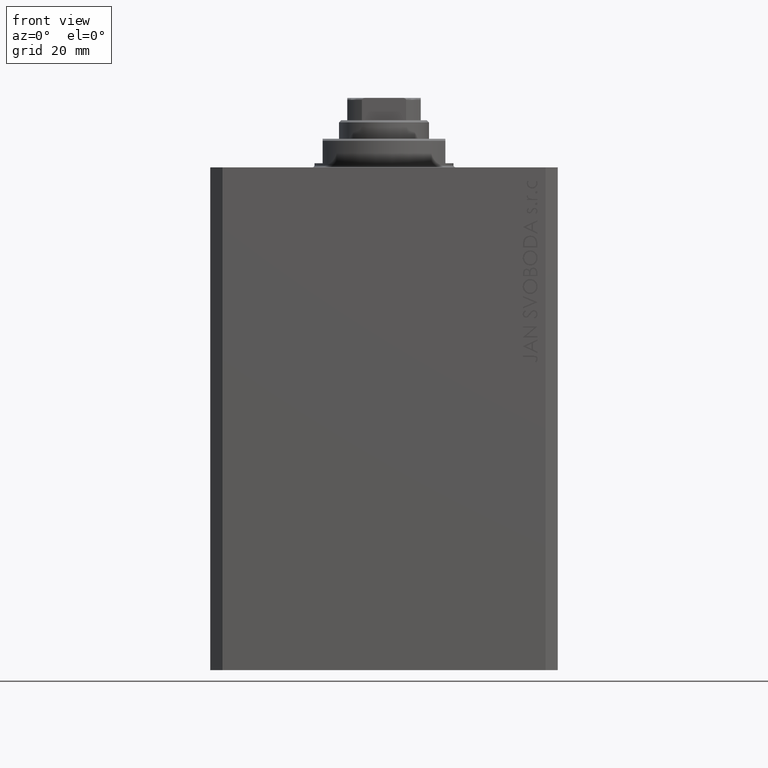
[diagram: clean part render]
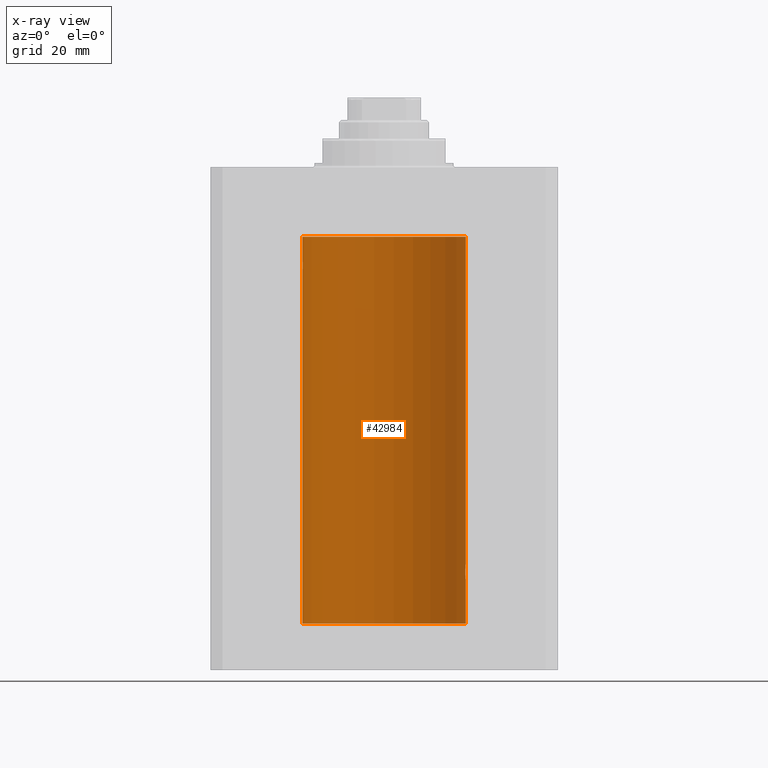
[diagram: x-ray — body ghosted, one internal face saturated and labeled with its STEP entity id]
A machine part, front view, then the same camera in x-ray: the body is ghosted and one INTERNAL B-rep face — a face not visible from any outside direction — is saturated and labeled: STEP entity #42984.
In plain terms, the highlighted cylindrical surface (partial cylindrical patch) has radius 20 mm, axis along (0, 0, 1).
Its self-contained STEP definition (entity closure, byte-faithful):
#664 = DIRECTION ( 'NONE',  ( -0.000000000000000000, -0.000000000000000000, 1.000000000000000000 ) ) ;
#879 = VERTEX_POINT ( 'NONE', #36351 ) ;
#1225 = AXIS2_PLACEMENT_3D ( 'NONE', #39849, #664, #15235 ) ;
#1323 = CARTESIAN_POINT ( 'NONE',  ( 19.90611763847108762, 1.935753518394741635, -98.48042243434849752 ) ) ;
#1352 = ORIENTED_EDGE ( 'NONE', *, *, #42874, .T. ) ;
#1548 = CARTESIAN_POINT ( 'NONE',  ( 19.91911433329477177, 1.797615436563606561, -98.11357106075776358 ) ) ;
#2272 = CARTESIAN_POINT ( 'NONE',  ( 20.00000000000000000, 1.967327733996653312E-15, -101.0000000000000000 ) ) ;
#2656 = CARTESIAN_POINT ( 'NONE',  ( -19.93679350243183990, 1.590453176650918676, -25.21960275349743696 ) ) ;
#2906 = CARTESIAN_POINT ( 'NONE',  ( -19.92373272380676497, 1.747830109444745927, -22.99354240926169624 ) ) ;
#3147 = CARTESIAN_POINT ( 'NONE',  ( -19.95654117037011588, 1.321069663197671273, -25.50738641543989615 ) ) ;
#3331 = CARTESIAN_POINT ( 'NONE',  ( 0.000000000000000000, 0.000000000000000000, -17.00000000000000000 ) ) ;
#3887 = ORIENTED_EDGE ( 'NONE', *, *, #42773, .T. ) ;
#4004 = ORIENTED_EDGE ( 'NONE', *, *, #6267, .T. ) ;
#4161 = DIRECTION ( 'NONE',  ( -0.000000000000000000, -0.000000000000000000, 1.000000000000000000 ) ) ;
#4530 = ORIENTED_EDGE ( 'NONE', *, *, #40909, .F. ) ;
#5029 = VERTEX_POINT ( 'NONE', #9109 ) ;
#5590 = CARTESIAN_POINT ( 'NONE',  ( 20.00000000000000000, -1.553109350199128042E-23, -97.00000000000000000 ) ) ;
#5875 = EDGE_CURVE ( 'NONE', #879, #16762, #28465, .T. ) ;
#5992 = CARTESIAN_POINT ( 'NONE',  ( -19.98998539619404013, 0.6443418861413118259, -25.89789687358865322 ) ) ;
#6108 = CIRCLE ( 'NONE', #35853, 20.00000000000000000 ) ;
#6237 = CARTESIAN_POINT ( 'NONE',  ( -19.95645382900617903, 1.322305185229311064, -22.49384229619286657 ) ) ;
#6267 = EDGE_CURVE ( 'NONE', #9493, #20572, #6108, .T. ) ;
#6375 = VERTEX_POINT ( 'NONE', #45075 ) ;
#6407 = CARTESIAN_POINT ( 'NONE',  ( 20.00000000000000000, 0.1322642052205942886, -101.0000000000000426 ) ) ;
#8716 = CARTESIAN_POINT ( 'NONE',  ( 19.98071536551674754, 0.8863972468204365240, -97.20236805399481739 ) ) ;
#8946 = CARTESIAN_POINT ( 'NONE',  ( 19.90107458412648711, 1.986930174329755161, -98.73692013941791856 ) ) ;
#9109 = CARTESIAN_POINT ( 'NONE',  ( 19.89974874213236333, 2.000000000000336620, -99.00000000000000000 ) ) ;
#9178 = CARTESIAN_POINT ( 'NONE',  ( 19.97511131722831479, 1.003336743019912936, -97.26498565174388489 ) ) ;
#9298 = CARTESIAN_POINT ( 'NONE',  ( -20.00000000000000000, 2.449293598294706513E-15, -111.5999999999999943 ) ) ;
#9480 = CARTESIAN_POINT ( 'NONE',  ( 20.00000000000000000, 0.000000000000000000, -17.00000000000000000 ) ) ;
#9493 = VERTEX_POINT ( 'NONE', #9480 ) ;
#9825 = CARTESIAN_POINT ( 'NONE',  ( -19.99999999999999645, 0.1322335637814733289, -21.99999999999999645 ) ) ;
#9995 = CARTESIAN_POINT ( 'NONE',  ( 20.00000000000000000, 1.967327733996653312E-15, -101.0000000000000000 ) ) ;
#10305 = CARTESIAN_POINT ( 'NONE',  ( -19.98067755938510714, 0.8872481584516758168, -22.20278656943303375 ) ) ;
#10552 = CARTESIAN_POINT ( 'NONE',  ( -19.98996196681220638, 0.6450624715427617506, -22.10234886833925572 ) ) ;
#11089 = CARTESIAN_POINT ( 'NONE',  ( 20.00000000000000000, 0.000000000000000000, -111.5999999999999943 ) ) ;
#11839 = CARTESIAN_POINT ( 'NONE',  ( 19.93681418096177183, 1.590194273034202688, -97.78006300821549246 ) ) ;
#11871 = VERTEX_POINT ( 'NONE', #2272 ) ;
#12535 = CARTESIAN_POINT ( 'NONE',  ( 19.95655800881796083, 1.320814917468111194, -97.49239309359698780 ) ) ;
#12580 = CIRCLE ( 'NONE', #13317, 20.00000000000000000 ) ;
#12947 = DIRECTION ( 'NONE',  ( 1.000000000000000000, 0.000000000000000000, 0.000000000000000000 ) ) ;
#13173 = CARTESIAN_POINT ( 'NONE',  ( -19.93684595445884611, 1.598854313793185655, -22.77049887769366521 ) ) ;
#13317 = AXIS2_PLACEMENT_3D ( 'NONE', #45646, #24150, #12947 ) ;
#13643 = CARTESIAN_POINT ( 'NONE',  ( -19.96304379627741454, 1.220099331833899736, -25.59007067689674386 ) ) ;
#13781 = EDGE_CURVE ( 'NONE', #21981, #16762, #18555, .T. ) ;
#14126 = CARTESIAN_POINT ( 'NONE',  ( -19.97510079925438475, 1.003547732426807171, -25.73489454601984150 ) ) ;
#15235 = DIRECTION ( 'NONE',  ( 1.000000000000000000, 0.000000000000000000, 0.000000000000000000 ) ) ;
#15491 = CARTESIAN_POINT ( 'NONE',  ( 19.98995738555794688, 0.6452086089795042723, -100.8976034536016044 ) ) ;
#15916 = VERTEX_POINT ( 'NONE', #29500 ) ;
#16127 = CARTESIAN_POINT ( 'NONE',  ( 19.99366205580918887, 0.5195372307044503479, -97.06423906555805559 ) ) ;
#16347 = CARTESIAN_POINT ( 'NONE',  ( 19.98998987637478209, 0.6441982143731844745, -97.10205654639885609 ) ) ;
#16762 = VERTEX_POINT ( 'NONE', #47127 ) ;
#16992 = CARTESIAN_POINT ( 'NONE',  ( -19.89975827978156175, 1.999905101582726719, -23.73819846102561115 ) ) ;
#17225 = CARTESIAN_POINT ( 'NONE',  ( -19.94330239452387232, 1.507796451871729504, -25.32060165083834136 ) ) ;
#17470 = CARTESIAN_POINT ( 'NONE',  ( -19.90610216711450420, 1.935912154109700190, -24.51899474186111050 ) ) ;
#17957 = CARTESIAN_POINT ( 'NONE',  ( -19.98070694681040038, 0.8865903856744316025, -25.79753901127162763 ) ) ;
#18183 = CARTESIAN_POINT ( 'NONE',  ( -20.00000000000000000, 2.449293598294706513E-15, -17.00000000000000000 ) ) ;
#18555 = LINE ( 'NONE', #29281, #30603 ) ;
#18841 = DIRECTION ( 'NONE',  ( 1.000000000000000000, 0.000000000000000000, 0.000000000000000000 ) ) ;
#19059 = CARTESIAN_POINT ( 'NONE',  ( 19.96307037068151757, 1.219701915132744841, -100.5904134935036751 ) ) ;
#19067 = EDGE_CURVE ( 'NONE', #15916, #21981, #12580, .T. ) ;
#19246 = DIRECTION ( 'NONE',  ( -0.000000000000000000, -0.000000000000000000, 1.000000000000000000 ) ) ;
#19293 = CARTESIAN_POINT ( 'NONE',  ( 19.93682487288204541, 1.599118048130817149, -100.2291703518122148 ) ) ;
#19518 = VECTOR ( 'NONE', #36324, 1000.000000000000000 ) ;
#19970 = B_SPLINE_CURVE_WITH_KNOTS ( 'NONE', 3,
 ( #38319, #37390, #8946, #1323, #37624, #1548, #45013, #11839, #41436, #12535, #30451, #9178, #8716, #16347, #16127, #30679, #23752, #5590 ),
 .UNSPECIFIED., .F., .F.,
 ( 4, 2, 2, 2, 2, 2, 2, 2, 4 ),
 ( 0.003129134698348759892, 0.003520095305221480463, 0.003911055912094201469, 0.004302016518966922040, 0.004692977125839642612, 0.005083937732712363183, 0.005474898339585083755, 0.005865858946457804327, 0.006256819553330524898 ),
 .UNSPECIFIED. ) ;
#20572 = VERTEX_POINT ( 'NONE', #18183 ) ;
#20810 = CARTESIAN_POINT ( 'NONE',  ( -19.89974399317116394, 2.000047251570890250, -24.12981181290706445 ) ) ;
#21217 = CARTESIAN_POINT ( 'NONE',  ( 19.99868904672146641, 0.2623009746877876802, -100.9870089850981429 ) ) ;
#21288 = CARTESIAN_POINT ( 'NONE',  ( -19.92471474456649716, 1.735228749583835439, -25.00297226784954674 ) ) ;
#21981 = VERTEX_POINT ( 'NONE', #27832 ) ;
#22644 = CARTESIAN_POINT ( 'NONE',  ( 19.97516523393783316, 1.002309963754524524, -100.7356447155611079 ) ) ;
#23752 = CARTESIAN_POINT ( 'NONE',  ( 20.00000000000000000, 0.1305404422160218736, -96.99999999999998579 ) ) ;
#24150 = DIRECTION ( 'NONE',  ( 0.000000000000000000, 0.000000000000000000, 1.000000000000000000 ) ) ;
#24355 = EDGE_LOOP ( 'NONE', ( #27294, #25479, #3887, #30467, #43386, #1352, #4004, #4530, #28595 ) ) ;
#25479 = ORIENTED_EDGE ( 'NONE', *, *, #19067, .F. ) ;
#26457 = CARTESIAN_POINT ( 'NONE',  ( 19.98066923111604964, 0.8874387315505228857, -100.7971214522023899 ) ) ;
#27156 = VECTOR ( 'NONE', #4161, 1000.000000000000000 ) ;
#27294 = ORIENTED_EDGE ( 'NONE', *, *, #13781, .F. ) ;
#27832 = CARTESIAN_POINT ( 'NONE',  ( -20.00000000000000000, 2.449293598294706513E-15, -111.5999999999999943 ) ) ;
#27962 = CARTESIAN_POINT ( 'NONE',  ( -19.90106552791689154, 1.987020435121076734, -24.26241417820002155 ) ) ;
#28205 = CARTESIAN_POINT ( 'NONE',  ( -19.90522393307484705, 1.947330458682957177, -23.47486091545001941 ) ) ;
#28465 = B_SPLINE_CURVE_WITH_KNOTS ( 'NONE', 3,
 ( #46830, #9825, #32272, #28689, #10552, #10305, #38960, #36097, #6237, #13173, #2906, #28205, #16992, #20810, #27962, #17470, #35361, #46587, #21288, #2656, #17225, #3147, #13643, #14126, #17957, #5992, #42771, #43007, #43249, #31786 ),
 .UNSPECIFIED., .F., .F.,
 ( 4, 2, 2, 2, 2, 2, 2, 2, 2, 2, 2, 2, 2, 2, 4 ),
 ( 1.233811249882840126E-19, 0.0003910512220831129202, 0.0007821024441662257319, 0.001173153666249338381, 0.001564204888332450813, 0.002346307332498675461, 0.003128409776664900326, 0.003519460998748018179, 0.003910512220831135165, 0.004301563442914253452, 0.004692614664997370871, 0.005083665887080488291, 0.005474717109163606578, 0.005865768331246723997, 0.006256819553329842284 ),
 .UNSPECIFIED. ) ;
#28595 = ORIENTED_EDGE ( 'NONE', *, *, #5875, .T. ) ;
#28689 = CARTESIAN_POINT ( 'NONE',  ( -19.99370013622814568, 0.5179893069484621249, -22.06384771616670903 ) ) ;
#29239 = LINE ( 'NONE', #11089, #27156 ) ;
#29281 = CARTESIAN_POINT ( 'NONE',  ( -20.00000000000000000, 2.449293598294706513E-15, -111.5999999999999943 ) ) ;
#29339 = DIRECTION ( 'NONE',  ( 0.000000000000000000, 0.000000000000000000, 1.000000000000000000 ) ) ;
#29500 = CARTESIAN_POINT ( 'NONE',  ( 20.00000000000000000, 0.000000000000000000, -111.5999999999999943 ) ) ;
#29560 = CYLINDRICAL_SURFACE ( 'NONE', #1225, 20.00000000000000000 ) ;
#30035 = CARTESIAN_POINT ( 'NONE',  ( 19.95643710845398999, 1.322557776536547047, -100.5059384114668717 ) ) ;
#30451 = CARTESIAN_POINT ( 'NONE',  ( 19.96305842179988588, 1.219858681717333138, -97.40974712539565417 ) ) ;
#30467 = ORIENTED_EDGE ( 'NONE', *, *, #40232, .T. ) ;
#30562 = DIRECTION ( 'NONE',  ( -0.000000000000000000, -0.000000000000000000, 1.000000000000000000 ) ) ;
#30603 = VECTOR ( 'NONE', #19246, 1000.000000000000000 ) ;
#30679 = CARTESIAN_POINT ( 'NONE',  ( 19.99867993937906618, 0.2631387813862826053, -97.01308095003095389 ) ) ;
#31786 = CARTESIAN_POINT ( 'NONE',  ( -20.00000000000000000, 2.449293582768784389E-15, -25.99999999999999645 ) ) ;
#32272 = CARTESIAN_POINT ( 'NONE',  ( -19.99868965376115071, 0.2622407139811102628, -22.01298505384673732 ) ) ;
#33379 = FACE_OUTER_BOUND ( 'NONE', #24355, .T. ) ;
#34162 = VECTOR ( 'NONE', #30562, 1000.000000000000000 ) ;
#35351 = LINE ( 'NONE', #36086, #19518 ) ;
#35361 = CARTESIAN_POINT ( 'NONE',  ( -19.90978941500366872, 1.898109641280506521, -24.64371130639850804 ) ) ;
#35781 = CARTESIAN_POINT ( 'NONE',  ( 19.99369727434158506, 0.5181068333511539281, -100.9361228828299630 ) ) ;
#35853 = AXIS2_PLACEMENT_3D ( 'NONE', #3331, #29339, #18841 ) ;
#36086 = CARTESIAN_POINT ( 'NONE',  ( 20.00000000000000000, 0.000000000000000000, -111.5999999999999943 ) ) ;
#36097 = CARTESIAN_POINT ( 'NONE',  ( -19.96308513509966787, 1.219458756546270672, -22.40940266542446935 ) ) ;
#36324 = DIRECTION ( 'NONE',  ( -0.000000000000000000, -0.000000000000000000, 1.000000000000000000 ) ) ;
#36351 = CARTESIAN_POINT ( 'NONE',  ( -20.00000000000000000, -1.269718202421245235E-16, -22.00000000000000000 ) ) ;
#36969 = CARTESIAN_POINT ( 'NONE',  ( 19.89974874213236333, 2.000000000000336620, -99.00000000000000000 ) ) ;
#37390 = CARTESIAN_POINT ( 'NONE',  ( 19.89974874213236689, 2.000000000000336620, -98.86948983741758923 ) ) ;
#37624 = CARTESIAN_POINT ( 'NONE',  ( 19.90980722176544049, 1.897923463361389285, -98.35574535366806970 ) ) ;
#38319 = CARTESIAN_POINT ( 'NONE',  ( 19.89974874213236333, 2.000000000000336620, -99.00000000000000000 ) ) ;
#38960 = CARTESIAN_POINT ( 'NONE',  ( -19.97517568592526160, 1.002099838626314909, -22.26423634872104884 ) ) ;
#39849 = CARTESIAN_POINT ( 'NONE',  ( 0.000000000000000000, 0.000000000000000000, -111.5999999999999943 ) ) ;
#40087 = CARTESIAN_POINT ( 'NONE',  ( 19.89974874213236689, 2.000000000000336620, -99.26114132155828429 ) ) ;
#40232 = EDGE_CURVE ( 'NONE', #11871, #5029, #46539, .T. ) ;
#40789 = CARTESIAN_POINT ( 'NONE',  ( 19.92371056170336274, 1.748080295468898537, -100.0060386593725070 ) ) ;
#40909 = EDGE_CURVE ( 'NONE', #879, #20572, #42010, .T. ) ;
#41436 = CARTESIAN_POINT ( 'NONE',  ( 19.94332236886613074, 1.507531922383789524, -97.67909949904074551 ) ) ;
#42010 = LINE ( 'NONE', #9298, #34162 ) ;
#42771 = CARTESIAN_POINT ( 'NONE',  ( -19.99365919015135518, 0.5196544277756711683, -25.93573148867292133 ) ) ;
#42773 = EDGE_CURVE ( 'NONE', #15916, #11871, #29239, .T. ) ;
#42874 = EDGE_CURVE ( 'NONE', #6375, #9493, #35351, .T. ) ;
#42984 = ADVANCED_FACE ( 'NONE', ( #33379 ), #29560, .F. ) ;
#43007 = CARTESIAN_POINT ( 'NONE',  ( -19.99867931558985745, 0.2631998640366461362, -25.98691292011447374 ) ) ;
#43249 = CARTESIAN_POINT ( 'NONE',  ( -19.99999999999999645, 0.1305706983324449733, -25.99999999999998934 ) ) ;
#43386 = ORIENTED_EDGE ( 'NONE', *, *, #44986, .T. ) ;
#44986 = EDGE_CURVE ( 'NONE', #5029, #6375, #19970, .T. ) ;
#45013 = CARTESIAN_POINT ( 'NONE',  ( 19.92473605353366040, 1.734984354167257159, -97.99660905888588047 ) ) ;
#45075 = CARTESIAN_POINT ( 'NONE',  ( 20.00000000000000000, -1.553109350199128042E-23, -97.00000000000000000 ) ) ;
#45646 = CARTESIAN_POINT ( 'NONE',  ( 0.000000000000000000, 0.000000000000000000, -111.5999999999999943 ) ) ;
#46539 = B_SPLINE_CURVE_WITH_KNOTS ( 'NONE', 3,
 ( #9995, #6407, #21217, #35781, #15491, #26457, #22644, #19059, #30035, #19293, #40789, #47242, #40087, #36969 ),
 .UNSPECIFIED., .F., .F.,
 ( 4, 2, 2, 2, 2, 2, 4 ),
 ( 1.911692756536875168E-18, 0.0003911418372936038769, 0.0007822836745872059107, 0.001173425511880807782, 0.001564567349174409870, 0.002346851023761584772, 0.003129134698348759892 ),
 .UNSPECIFIED. ) ;
#46587 = CARTESIAN_POINT ( 'NONE',  ( -19.91909332229799290, 1.797847595792767317, -24.88596189455837759 ) ) ;
#46830 = CARTESIAN_POINT ( 'NONE',  ( -20.00000000000000000, -1.269718202421245235E-16, -22.00000000000000000 ) ) ;
#47127 = CARTESIAN_POINT ( 'NONE',  ( -20.00000000000000000, 2.449293582768784389E-15, -25.99999999999999645 ) ) ;
#47242 = CARTESIAN_POINT ( 'NONE',  ( 19.90520750556430229, 1.947496194184494378, -99.52455416993456083 ) ) ;